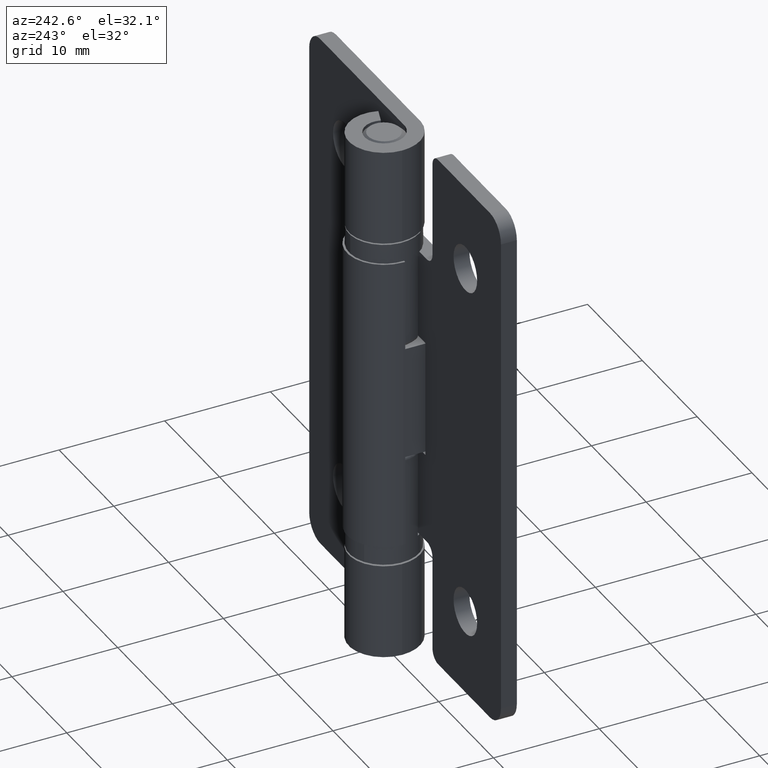
[diagram: clean part render]
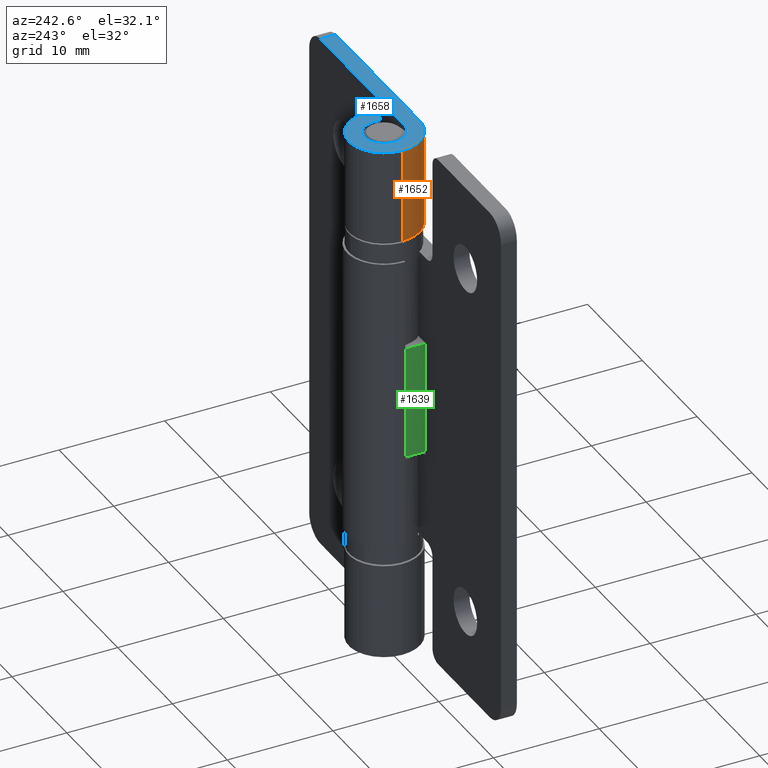
[diagram: same view with three faces highlighted in distinct colors, each labeled with its STEP entity id]
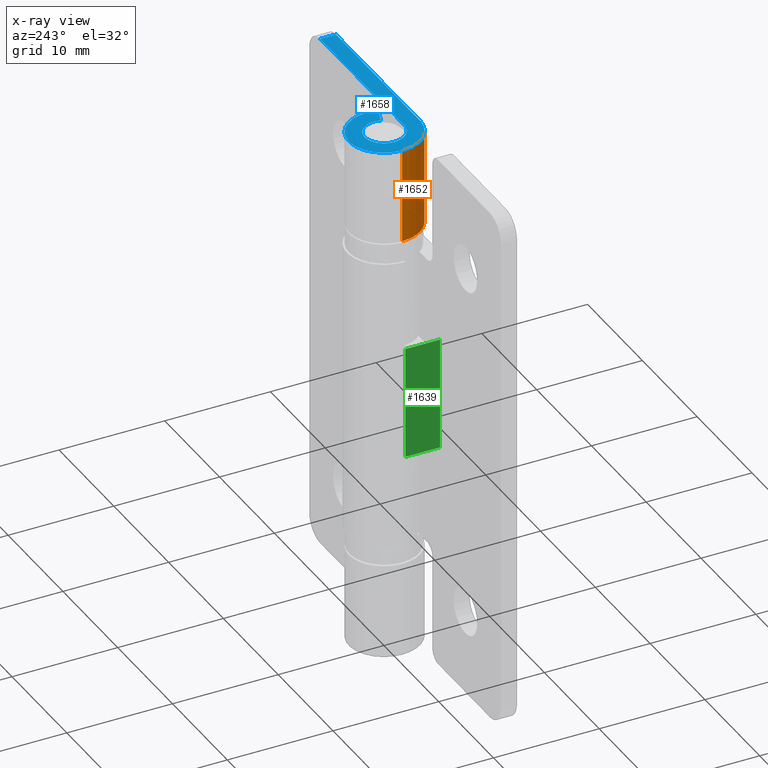
[diagram: x-ray of the same camera — body ghosted, the three highlighted faces saturated]
A machine part, auxiliary view with three faces highlighted in distinct colors.
The next image is the same camera in x-ray (body ghosted, the three faces saturated) — at least one of them is partly hidden behind the body in this view.
Their STEP definitions:

[orange] entity #1652 — the highlighted cylindrical surface (partial cylindrical patch) has radius 3.5046 mm, axis along (0, 0, -1).
#157=LINE('',#2673,#279);
#158=LINE('',#2679,#280);
#279=VECTOR('',#2143,9.);
#280=VECTOR('',#2150,9.);
#447=FACE_OUTER_BOUND('',#558,.T.);
#558=EDGE_LOOP('',(#1315,#1316,#1317,#1318));
#679=CIRCLE('',#1795,3.50460526315789);
#680=CIRCLE('',#1796,3.50460526315789);
#815=VERTEX_POINT('',#2670);
#816=VERTEX_POINT('',#2672);
#817=VERTEX_POINT('',#2676);
#818=VERTEX_POINT('',#2678);
#1001=EDGE_CURVE('',#816,#815,#157,.T.);
#1003=EDGE_CURVE('',#815,#817,#679,.T.);
#1004=EDGE_CURVE('',#818,#817,#158,.T.);
#1005=EDGE_CURVE('',#816,#818,#680,.T.);
#1315=ORIENTED_EDGE('',*,*,#1001,.T.);
#1316=ORIENTED_EDGE('',*,*,#1003,.T.);
#1317=ORIENTED_EDGE('',*,*,#1004,.F.);
#1318=ORIENTED_EDGE('',*,*,#1005,.F.);
#1588=CYLINDRICAL_SURFACE('',#1794,3.50460526315789);
#1652=ADVANCED_FACE('',(#447),#1588,.T.);
#1794=AXIS2_PLACEMENT_3D('',#2675,#2146,#2147);
#1795=AXIS2_PLACEMENT_3D('',#2677,#2148,#2149);
#1796=AXIS2_PLACEMENT_3D('',#2680,#2151,#2152);
#2143=DIRECTION('',(-1.,0.,0.));
#2146=DIRECTION('center_axis',(-1.,0.,0.));
#2147=DIRECTION('ref_axis',(0.,0.,1.));
#2148=DIRECTION('center_axis',(1.,0.,0.));
#2149=DIRECTION('ref_axis',(0.,0.,-1.));
#2150=DIRECTION('',(-1.,0.,0.));
#2151=DIRECTION('center_axis',(1.,0.,0.));
#2152=DIRECTION('ref_axis',(0.,0.,-1.));
#2670=CARTESIAN_POINT('',(16.,1.48432047902824E-10,3.32500000000005));
#2672=CARTESIAN_POINT('',(25.,1.48438002251368E-10,3.32500000042378));
#2673=CARTESIAN_POINT('',(25.,1.48438002251368E-10,3.32500000042378));
#2675=CARTESIAN_POINT('Origin',(25.,1.4843290398886E-10,-0.179605262734105));
#2676=CARTESIAN_POINT('',(16.,-3.49999999985157,4.23597788790087E-10));
#2677=CARTESIAN_POINT('Origin',(16.,1.4843290398886E-10,-0.179605262734105));
#2678=CARTESIAN_POINT('',(25.,-3.49999999985157,4.23597901547113E-10));
#2679=CARTESIAN_POINT('',(25.,-3.49999999985157,4.23597901547113E-10));
#2680=CARTESIAN_POINT('Origin',(25.,1.4843290398886E-10,-0.179605262734105));

[blue] entity #1658 — the highlighted planar face has unit normal (0, 0, 1).
#161=LINE('',#2691,#283);
#168=LINE('',#2711,#290);
#173=LINE('',#2730,#295);
#174=LINE('',#2732,#296);
#283=VECTOR('',#2163,15.5000000004236);
#290=VECTOR('',#2178,15.499999999975);
#295=VECTOR('',#2201,1.50000000044903);
#296=VECTOR('',#2204,1.50000000000004);
#351=PLANE('',#1814);
#453=FACE_OUTER_BOUND('',#568,.T.);
#568=EDGE_LOOP('',(#1359,#1360,#1361,#1362,#1363,#1364,#1365,#1366));
#678=CIRCLE('',#1793,3.325);
#680=CIRCLE('',#1796,3.50460526315789);
#690=CIRCLE('',#1809,2.0083904109589);
#692=CIRCLE('',#1812,1.82499999955098);
#813=VERTEX_POINT('',#2667);
#816=VERTEX_POINT('',#2672);
#818=VERTEX_POINT('',#2678);
#822=VERTEX_POINT('',#2689);
#830=VERTEX_POINT('',#2708);
#831=VERTEX_POINT('',#2710);
#834=VERTEX_POINT('',#2719);
#836=VERTEX_POINT('',#2725);
#1002=EDGE_CURVE('',#813,#816,#678,.T.);
#1005=EDGE_CURVE('',#816,#818,#680,.T.);
#1011=EDGE_CURVE('',#818,#822,#161,.T.);
#1021=EDGE_CURVE('',#831,#830,#168,.T.);
#1027=EDGE_CURVE('',#830,#834,#690,.T.);
#1030=EDGE_CURVE('',#834,#836,#692,.T.);
#1032=EDGE_CURVE('',#836,#813,#173,.T.);
#1033=EDGE_CURVE('',#822,#831,#174,.T.);
#1359=ORIENTED_EDGE('',*,*,#1033,.T.);
#1360=ORIENTED_EDGE('',*,*,#1021,.T.);
#1361=ORIENTED_EDGE('',*,*,#1027,.T.);
#1362=ORIENTED_EDGE('',*,*,#1030,.T.);
#1363=ORIENTED_EDGE('',*,*,#1032,.T.);
#1364=ORIENTED_EDGE('',*,*,#1002,.T.);
#1365=ORIENTED_EDGE('',*,*,#1005,.T.);
#1366=ORIENTED_EDGE('',*,*,#1011,.T.);
#1658=ADVANCED_FACE('',(#453),#351,.T.);
#1793=AXIS2_PLACEMENT_3D('',#2674,#2144,#2145);
#1796=AXIS2_PLACEMENT_3D('',#2680,#2151,#2152);
#1809=AXIS2_PLACEMENT_3D('',#2721,#2189,#2190);
#1812=AXIS2_PLACEMENT_3D('',#2727,#2196,#2197);
#1814=AXIS2_PLACEMENT_3D('',#2731,#2202,#2203);
#2144=DIRECTION('center_axis',(1.,0.,0.));
#2145=DIRECTION('ref_axis',(0.,0.,-1.));
#2151=DIRECTION('center_axis',(1.,0.,0.));
#2152=DIRECTION('ref_axis',(0.,0.,-1.));
#2163=DIRECTION('',(0.,0.,-1.));
#2178=DIRECTION('',(0.,0.,1.));
#2189=DIRECTION('center_axis',(-1.,0.,0.));
#2190=DIRECTION('ref_axis',(0.,0.,-1.));
#2196=DIRECTION('center_axis',(-1.,0.,0.));
#2197=DIRECTION('ref_axis',(0.,0.,-1.));
#2201=DIRECTION('',(0.,-0.330578512286619,-0.943778494782735));
#2202=DIRECTION('center_axis',(1.,0.,0.));
#2203=DIRECTION('ref_axis',(0.,0.,-1.));
#2204=DIRECTION('',(0.,1.,0.));
#2667=CARTESIAN_POINT('',(25.,-1.09917355357834,-3.1380634945979));
#2672=CARTESIAN_POINT('',(25.,1.48438002251368E-10,3.32500000042378));
#2674=CARTESIAN_POINT('Origin',(25.,1.48438011014773E-10,4.23780151595499E-10));
#2678=CARTESIAN_POINT('',(25.,-3.49999999985157,4.23597901547113E-10));
#2680=CARTESIAN_POINT('Origin',(25.,1.4843290398886E-10,-0.179605262734105));
#2689=CARTESIAN_POINT('',(25.,-3.49999999985157,-15.5));
#2691=CARTESIAN_POINT('',(25.,-3.49999999985157,4.23597901547113E-10));
#2708=CARTESIAN_POINT('',(25.,-1.99999999985153,-2.50501930396801E-11));
#2710=CARTESIAN_POINT('',(25.,-1.99999999985153,-15.5));
#2711=CARTESIAN_POINT('',(25.,-1.99999999985153,-17.4999999995762));
#2719=CARTESIAN_POINT('',(25.,1.48386364893116E-10,1.82499999997476));
#2721=CARTESIAN_POINT('Origin',(25.,1.48444339286026E-10,-0.18339041098414));
#2725=CARTESIAN_POINT('',(25.,-0.603305784999975,-1.72239575200001));
#2727=CARTESIAN_POINT('Origin',(25.,1.48438011014773E-10,4.23780151595499E-10));
#2730=CARTESIAN_POINT('',(25.,-1.09917355357834,-3.1380634945979));
#2731=CARTESIAN_POINT('Origin',(25.,1.48438011014773E-10,4.23780151595499E-10));
#2732=CARTESIAN_POINT('',(25.,-3.49999999985157,-15.5));

[green] entity #1639 — the highlighted planar face has unit normal (-1, 0, 0).
#94=LINE('',#2485,#216);
#139=LINE('',#2604,#261);
#140=LINE('',#2606,#262);
#141=LINE('',#2607,#263);
#216=VECTOR('',#1954,10.6999999999999);
#261=VECTOR('',#2073,3.3);
#262=VECTOR('',#2074,10.6999999999999);
#263=VECTOR('',#2075,3.3);
#342=PLANE('',#1766);
#434=FACE_OUTER_BOUND('',#543,.T.);
#543=EDGE_LOOP('',(#1267,#1268,#1269,#1270));
#753=VERTEX_POINT('',#2483);
#754=VERTEX_POINT('',#2484);
#791=VERTEX_POINT('',#2603);
#792=VERTEX_POINT('',#2605);
#909=EDGE_CURVE('',#753,#754,#94,.T.);
#970=EDGE_CURVE('',#791,#753,#139,.T.);
#971=EDGE_CURVE('',#791,#792,#140,.T.);
#972=EDGE_CURVE('',#792,#754,#141,.T.);
#1267=ORIENTED_EDGE('',*,*,#909,.F.);
#1268=ORIENTED_EDGE('',*,*,#970,.F.);
#1269=ORIENTED_EDGE('',*,*,#971,.T.);
#1270=ORIENTED_EDGE('',*,*,#972,.T.);
#1639=ADVANCED_FACE('',(#434),#342,.T.);
#1766=AXIS2_PLACEMENT_3D('',#2602,#2071,#2072);
#1954=DIRECTION('',(1.,0.,0.));
#2071=DIRECTION('center_axis',(0.,0.,1.));
#2072=DIRECTION('ref_axis',(1.,0.,0.));
#2073=DIRECTION('',(0.,1.,0.));
#2074=DIRECTION('',(1.,0.,0.));
#2075=DIRECTION('',(0.,1.,0.));
#2483=CARTESIAN_POINT('',(-5.34999999999991,-0.2,3.49971802300001));
#2484=CARTESIAN_POINT('',(5.35000000000002,-0.2,3.49971802300001));
#2485=CARTESIAN_POINT('',(25.,-0.2,3.49971802300001));
#2602=CARTESIAN_POINT('Origin',(-5.34999999999991,-3.5,3.49971802300001));
#2603=CARTESIAN_POINT('',(-5.34999999999991,-3.5,3.49971802300001));
#2604=CARTESIAN_POINT('',(-5.34999999999991,-3.5,3.49971802300001));
#2605=CARTESIAN_POINT('',(5.35000000000002,-3.5,3.49971802300001));
#2606=CARTESIAN_POINT('',(-5.34999999999991,-3.5,3.49971802300001));
#2607=CARTESIAN_POINT('',(5.35000000000002,-3.5,3.49971802300001));